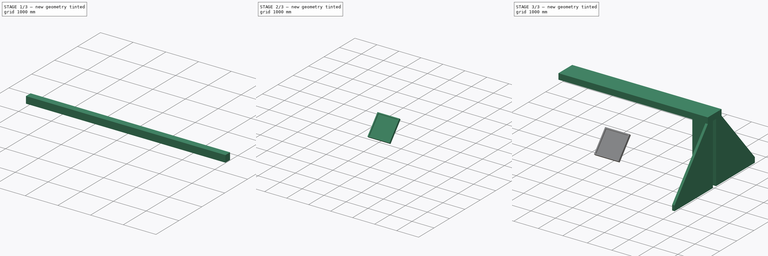
[diagram: build sequence overview — one tinted view per stage of 3, left to right]
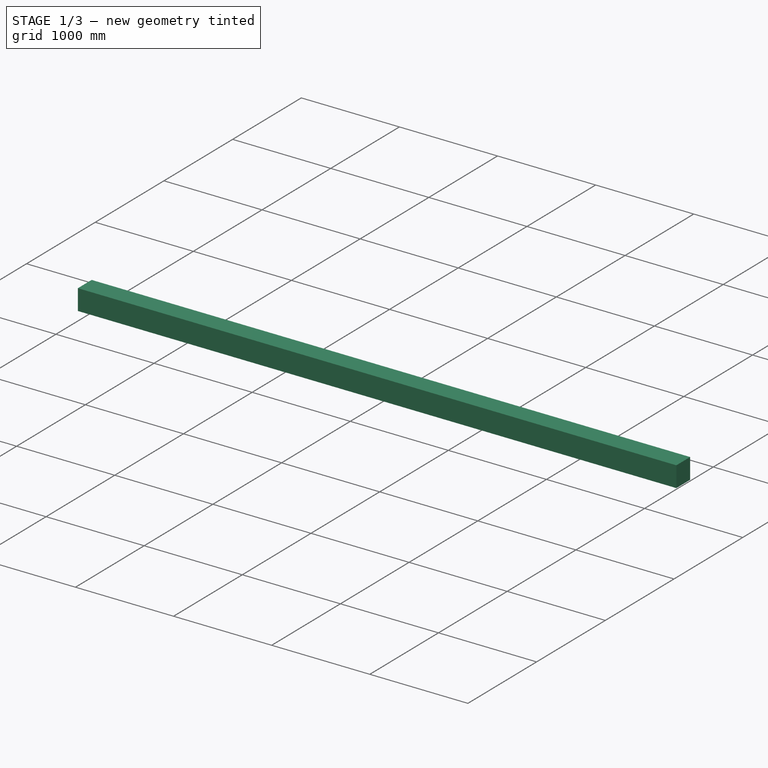
[diagram: stage 1 of 3 — iso view after this stage's code; geometry added in this stage tinted green]
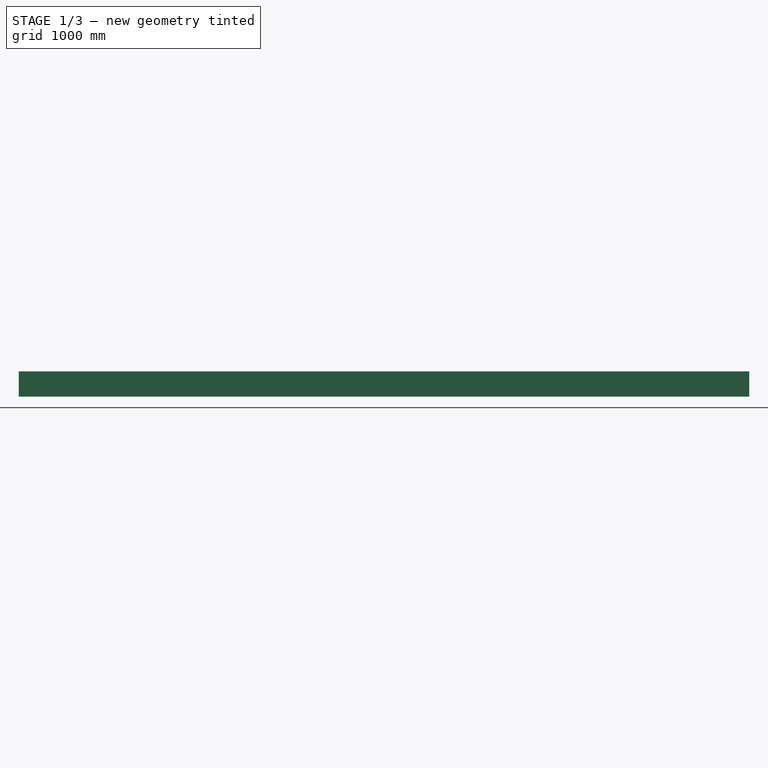
[diagram: stage 1 of 3 — front view after this stage's code; geometry added in this stage tinted green]
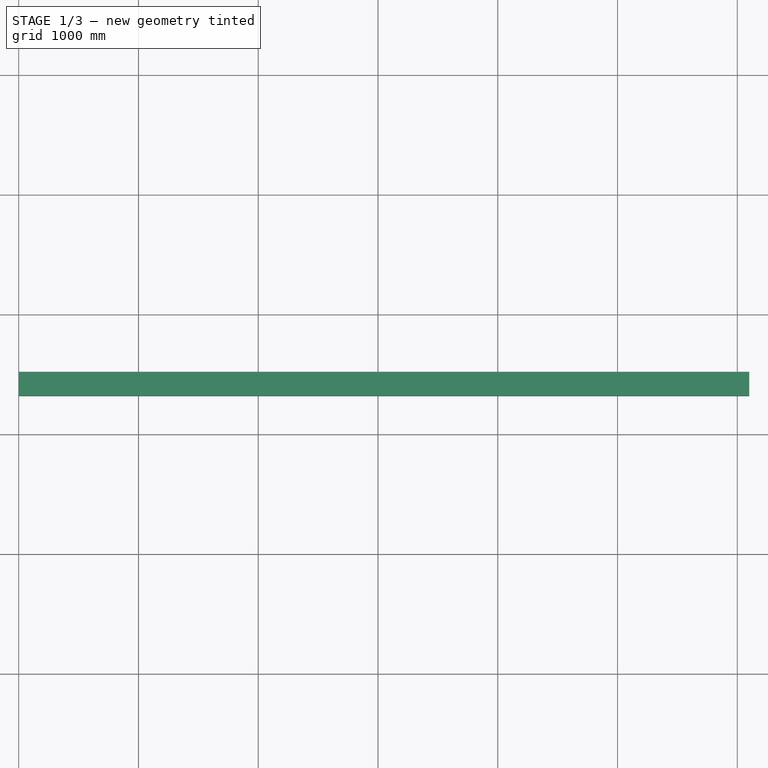
[diagram: stage 1 of 3 — top view after this stage's code; geometry added in this stage tinted green]
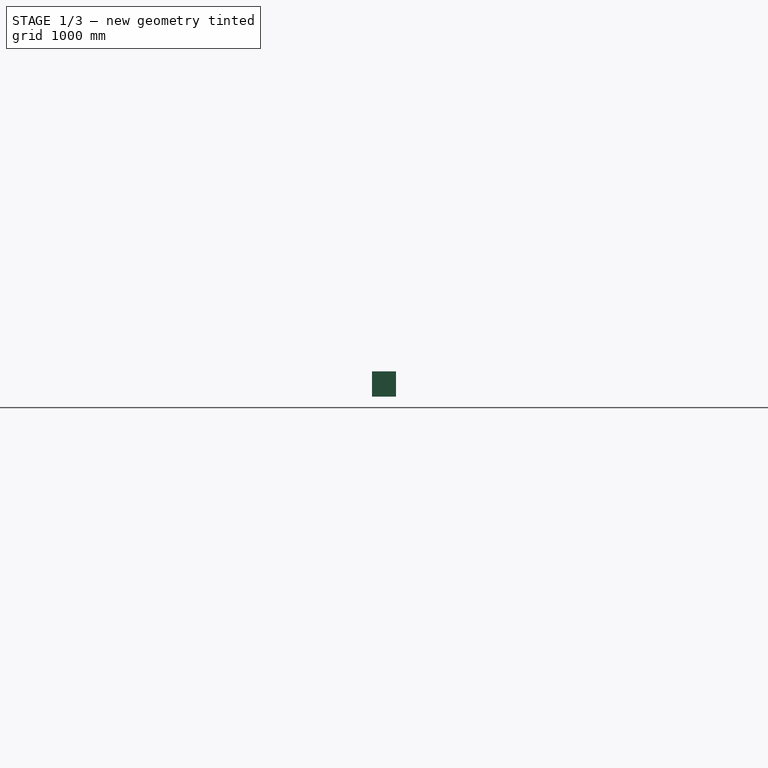
[diagram: stage 1 of 3 — right view after this stage's code; geometry added in this stage tinted green]
FCSTD DOCUMENT  (FreeCAD 1.0RUnknown)
Label: attic_bim
License: All rights reserved
LicenseURL: https://en.wikipedia.org/wiki/All_rights_reserved
objects: App::Link×8, Sketcher::SketchObject×7, Part::FeaturePython×7, App::DocumentObjectGroup×2, App::GeometryPython×2, Measure::MeasureDistance×1
note: 23 computed .brp shape members not serialized (recipe doc carries the construction recipe); baked Part::Feature solids carry a one-line shape summary decoded from their .brp
EXTERNAL_REF file=wardrobe_jan/wardrobe_jan_assy4.FCStd obj=Assembly
EXTERNAL_REF file=bed_dummy.FCStd obj=Body
EXTERNAL_REF file=entrance/leftWall.FCStd obj=Assembly
EXTERNAL_REF file=entrance/rightWallFront.FCStd obj=Assembly
EXTERNAL_REF file=entrance/rightWallSide.FCStd obj=Assembly
EXTERNAL_REF file=entrance/leftWall_top.FCStd obj=Assembly
EXTERNAL_REF file=entrance/rightWallFront_top.FCStd obj=Assembly
EXTERNAL_REF file=entrance/rightWallSide_top.FCStd obj=Assembly

FEATURE [Sketcher::SketchObject] Sketch
  ArcFitTolerance = 1e-06
  FullyConstrained = true
  MakeInternals = false
  Placement = pos=(0,0,0) rot=(0,0,-1;1.5708rad)
  expr: Constraints[2] = 140.5 cm
  sketch-geometry (14):
    g0: LineSegment StartX=-1405 StartY=0 StartZ=0 EndX=0 EndY=0 EndZ=0
    g1: LineSegment StartX=0 StartY=0 StartZ=0 EndX=0 EndY=887 EndZ=0
    g2: LineSegment StartX=0 StartY=887 StartZ=0 EndX=715 EndY=887 EndZ=0
    g3: LineSegment StartX=1815 StartY=807 StartZ=0 EndX=1815 EndY=0 EndZ=0
    g4: LineSegment StartX=1815 StartY=0 StartZ=0 EndX=3693 EndY=0 EndZ=0
    g5: LineSegment StartX=-1405 StartY=0 StartZ=0 EndX=-1405 EndY=6100 EndZ=0
    g6: LineSegment StartX=-1405 StartY=6100 StartZ=0 EndX=1055 EndY=6100 EndZ=0
    g7: LineSegment StartX=1055 StartY=6100 StartZ=0 EndX=1055 EndY=5430 EndZ=0
    g8: LineSegment StartX=1055 StartY=5430 StartZ=0 EndX=1240 EndY=5430 EndZ=0
    g9: LineSegment StartX=1240 StartY=5430 StartZ=0 EndX=1240 EndY=6100 EndZ=0
    g10: LineSegment StartX=1240 StartY=6100 StartZ=0 EndX=3693 EndY=6100 EndZ=0
    g11: LineSegment StartX=3693 StartY=6100 StartZ=0 EndX=3693 EndY=0 EndZ=0
    g12: LineSegment StartX=715 StartY=887 StartZ=0 EndX=715 EndY=807 EndZ=0
    g13: LineSegment StartX=715 StartY=807 StartZ=0 EndX=1815 EndY=807 EndZ=0
  constraints (41):
    c: PointOnObject(g0,g-1)
    c: Coincident(g0,g-1)
    c: DistanceX(g0,g0) = 1405
    c: Distance(g1) = 887
    c: Coincident(g1,g0)
    c: PointOnObject(g1,g-2)
    c: Coincident(g2,g1)
    c: Horizontal(g2)
    c: PointOnObject(g3,g-1)
    c: Vertical(g3)
    c: Coincident(g4,g3)
    c: PointOnObject(g4,g-1)
    c: Distance(g5) = 6100
    c: Coincident(g5,g0)
    c: Vertical(g5)
    c: Distance(g6) = 2460
    c: Coincident(g6,g5)
    c: Horizontal(g6)
    c: Distance(g7) = 670
    c: Coincident(g7,g6)
    c: Vertical(g7)
    c: Distance(g8) = 185
    c: Coincident(g8,g7)
    c: Horizontal(g8)
    c: Distance(g9) = 670
    c: Coincident(g9,g8)
    c: Vertical(g9)
    c: Coincident(g10,g9)
    c: Horizontal(g10)
    c: Coincident(g11,g10)
    c: Coincident(g11,g4)
    c: Perpendicular(g10,g11)
    c: Coincident(g12,g13)
    c: Vertical(g12)
    c: Horizontal(g13)
    c: Coincident(g3,g13)
    c: Distance(g12,g12) = 80
    c: DistanceX(g13,g13) = 1100
    c: DistanceX(g2,g2) = 715
    c: Coincident(g12,g2)
    c: DistanceX(g4,g4) = 1878
FEATURE [Part::FeaturePython] Structure  label="Platte"  # Arch/BIM 118 (typed FeaturePython)
  Base = -> Sketch
  BaseMirror = false
  BaseOffsetX = 0
  BaseOffsetY = 0
  BasePerpendicularToTool = false
  BaseRotation = 0
  ComputedLength = 200
  FaceMaker = 0
  Height = 200
  HorizontalArea = 29451945
  IfcData = attributes={"GlobalId": {"name": "GlobalId", "type": "IfcGloballyUniqueId", "is_enum": false, "enum_values": []}, "Description": {"... (+453 chars omitted),+1 more (map truncated)
  IfcType = 118
  Length = 0
  MoveBase = false
  MoveWithHost = false
  Nodes = (12) [(-3.10862e-13,1400,0),(0,0,0),(800,1.77636e-13,0),(800,-1400,0),(3.10862e-13,-1400,0),(8.03801e-13,-3620,0),(6000,-3620,0),(6000,-1260,0),+4 more]
  NodesOffset = 0
  Normal = (0,0,-1)
  PerimeterLength = 25510
  PredefinedType = 0
  ToolOffsetFirst = 0
  ToolOffsetLast = 0
  VerticalArea = 5102000
  Width = 100
FEATURE [Sketcher::SketchObject] WallTrace003
  ArcFitTolerance = 1e-06
  ExternalGeometry = -> [Structure]
  FullyConstrained = true
  MakeInternals = false
  sketch-geometry (1):
    g0: LineSegment StartX=807 StartY=-815 StartZ=0 EndX=807 EndY=-815 EndZ=0
  constraints (4):
    c: Horizontal(g0)
    c: Vertical(g0,g-3)
    c: Vertical(g0,g-3)
    c: Distance(g0,g-3) = 100
FEATURE [Part::FeaturePython] Wall002  label="Wand002"  # Arch/BIM 166 (typed FeaturePython)
  Align = 2
  ArchSketchData = true
  Area = 1281000
  Base = -> WallTrace003
  BlockHeight = 0
  BlockLength = 0
  CountBroken = 0
  CountEntire = 0
  Face = 0
  Height = 210
  HorizontalArea = 1220000
  IfcData = attributes={"GlobalId": {"name": "GlobalId", "type": "IfcGloballyUniqueId", "is_enum": false, "enum_values": []}, "Description": {"... (+533 chars omitted),+1 more (map truncated)
  IfcType = 166
  Joint = 0
  Length = 6100
  MakeBlocks = false
  MoveBase = false
  MoveWithHost = false
  Normal = (0,0,1)
  OffsetFirst = 0
  OffsetSecond = 0
  PerimeterLength = 12600
  PredefinedType = 0
  VerticalArea = 2646000
  Width = 200
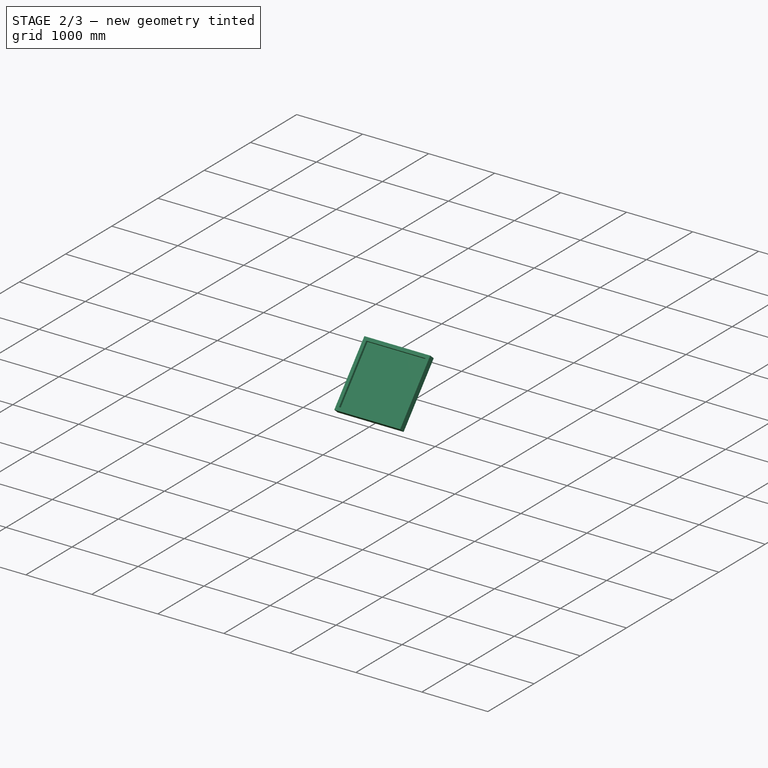
[diagram: stage 2 of 3 — iso view after this stage's code; geometry added in this stage tinted green]
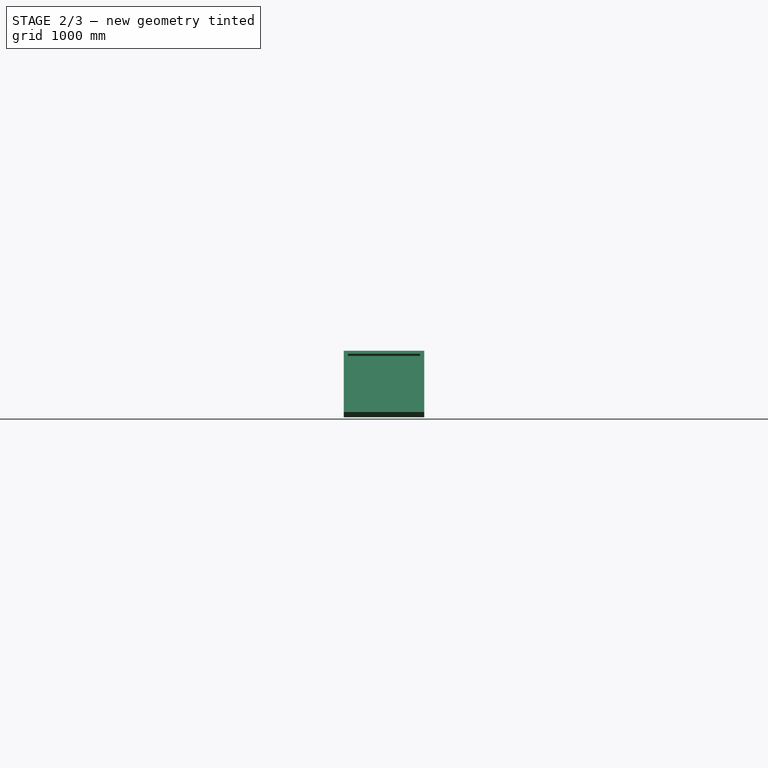
[diagram: stage 2 of 3 — front view after this stage's code; geometry added in this stage tinted green]
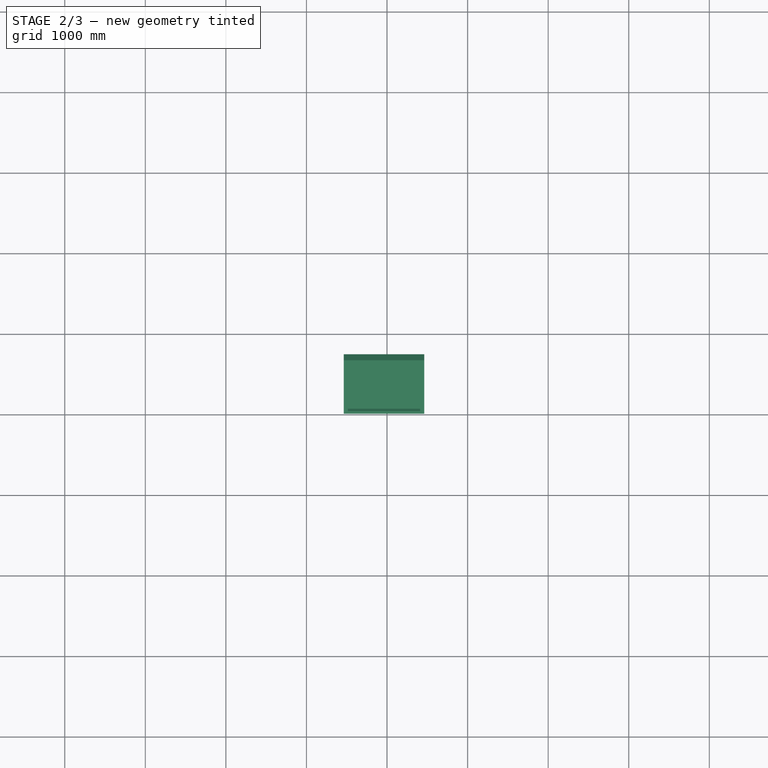
[diagram: stage 2 of 3 — top view after this stage's code; geometry added in this stage tinted green]
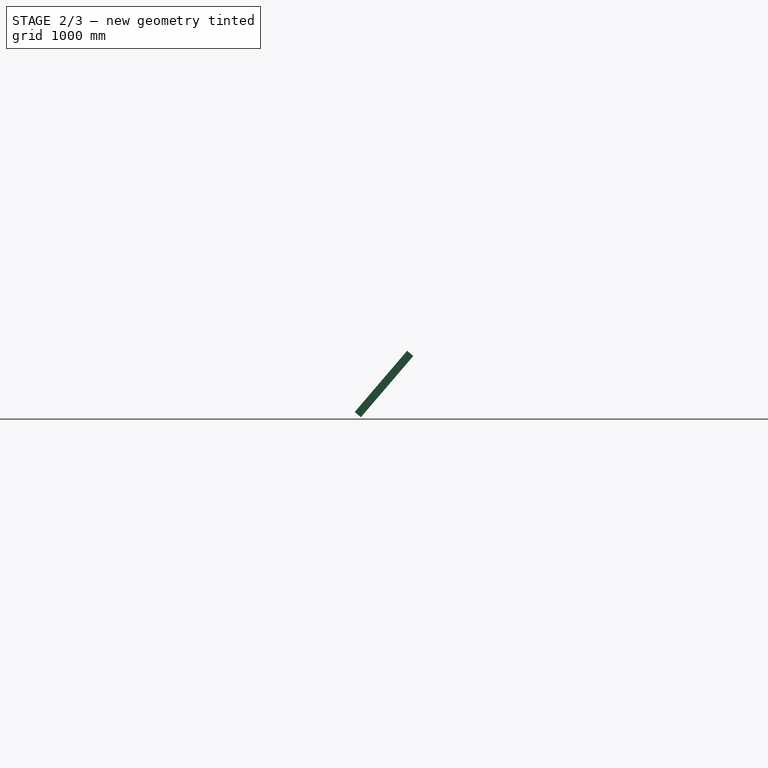
[diagram: stage 2 of 3 — right view after this stage's code; geometry added in this stage tinted green]
FEATURE [Sketcher::SketchObject] WallTrace001
  ArcFitTolerance = 1e-06
  ExternalGeometry = -> [Structure]
  FullyConstrained = true
  MakeInternals = false
  sketch-geometry (1):
    g0: LineSegment StartX=5430 StartY=-1155 StartZ=0 EndX=5430 EndY=-1155 EndZ=0
  constraints (4):
    c: Distance(g-3,g0) = 100
    c: Vertical(g-3,g0)
    c: Vertical(g-3,g0)
    c: Horizontal(g0)
FEATURE [Part::FeaturePython] Wall  label="Wand"  # Arch/BIM 166 (typed FeaturePython)
  Align = 2
  ArchSketchData = true
  Area = 1.281e+06
  Base = -> WallTrace001
  BlockHeight = 0
  BlockLength = 0
  CountBroken = 0
  CountEntire = 0
  Face = 0
  Height = 210
  HorizontalArea = 1.22e+06
  IfcData = attributes={"GlobalId": {"name": "GlobalId", "type": "IfcGloballyUniqueId", "is_enum": false, "enum_values": []}, "Description": {"... (+533 chars omitted),+1 more (map truncated)
  IfcType = 166
  Joint = 0
  Length = 6100
  MakeBlocks = false
  MoveBase = false
  MoveWithHost = false
  Normal = (0,0,1)
  OffsetFirst = 0
  OffsetSecond = 0
  PerimeterLength = 12600
  PredefinedType = 0
  VerticalArea = 2646000
  Width = 200
FEATURE [Sketcher::SketchObject] WallTrace002
  ArcFitTolerance = 1e-06
  ExternalGeometry = -> [Structure,Wall,Wall002]
  FullyConstrained = true
  MakeInternals = false
  sketch-geometry (5):
    g0: LineSegment StartX=6050 StartY=-1010 StartZ=0 EndX=5380 EndY=-1010 EndZ=0
    g1: LineSegment StartX=5380 StartY=-1010 StartZ=0 EndX=5380 EndY=-1295 EndZ=0
    g2: LineSegment StartX=5380 StartY=-1295 StartZ=0 EndX=6050 EndY=-1295 EndZ=0
    g3: LineSegment StartX=6050 StartY=-1010 StartZ=0 EndX=6050 EndY=1200 EndZ=0
    g4: LineSegment StartX=6050 StartY=-1295 StartZ=0 EndX=6050 EndY=-3480 EndZ=0
  constraints (16):
    c: Horizontal(g0)
    c: DistanceX(g0,g-3) = 50
    c: Coincident(g1,g0)
    c: Vertical(g1)
    c: Coincident(g2,g1)
    c: Horizontal(g2)
    c: Vertical(g3)
    c: PointOnObject(g3,g-5)
    c: DistanceX(g3,g-3) = 50
    c: Coincident(g0,g3)
    c: DistanceY(g-3,g0) = 50
    c: PointOnObject(g4,g-6)
    c: Vertical(g4)
    c: Coincident(g2,g4)
    c: DistanceX(g2,g-4) = 50
    c: DistanceY(g2,g-4) = 50
FEATURE [Sketcher::SketchObject] Sketch001
  ArcFitTolerance = 1e-06
  ExternalGeometry = -> [Wall,Wall002]
  FullyConstrained = true
  MakeInternals = false
  Placement = pos=(0,0,210) rot=(0,0,1;0rad)
  sketch-geometry (4):
    g0: LineSegment StartX=0 StartY=1200 StartZ=0 EndX=0 EndY=-3480 EndZ=0
    g1: LineSegment StartX=0 StartY=-3480 StartZ=0 EndX=6100 EndY=-3480 EndZ=0
    g2: LineSegment StartX=6100 StartY=-3480 StartZ=0 EndX=6100 EndY=1200 EndZ=0
    g3: LineSegment StartX=6100 StartY=1200 StartZ=0 EndX=0 EndY=1200 EndZ=0
  constraints (10):
    c: Coincident(g0,g1)
    c: Coincident(g1,g2)
    c: Coincident(g2,g3)
    c: Coincident(g3,g0)
    c: Vertical(g0)
    c: Vertical(g2)
    c: Horizontal(g1)
    c: Horizontal(g3)
    c: Coincident(g0,g-3)
    c: Coincident(g1,g-4)
FEATURE [Part::FeaturePython] Roof  label="Dach"  # Arch/BIM 113 (typed FeaturePython)
  Angles = [45,49.43,40,49.43]
  Base = -> Sketch001
  BorderLength = 41879.6
  Face = 0
  Flip = false
  Heights = [0,2265.84,0,2265.84]
  HorizontalArea = 2.55796e+07
  IdRel = [-1,-1,-1,-1]
  IfcData = attributes={"GlobalId": {"name": "GlobalId", "type": "IfcGloballyUniqueId", "is_enum": false, "enum_values": []}, "Description": {"... (+614 chars omitted),+1 more (map truncated)
  IfcType = 113
  MoveBase = false
  MoveWithHost = false
  Overhang = [0,200,100,200]
  PerimeterLength = 34140
  PredefinedType = 2
  RidgeLength = 998
  Runs = [0,1940,0,1940]
  Thickness = [50,160,50,160]
  VerticalArea = 8.42885e+06
FEATURE [App::Link] Link  label="wardrobe_jan"
  LinkPlacement = pos=(5661,130.999,-48) rot=(0,0,1;0rad)
  LinkedObject = -> <external wardrobe_jan/wardrobe_jan_assy4.FCStd>#Assembly
  Placement = pos=(5661,130.999,-48) rot=(0,0,1;0rad)
FEATURE [App::DocumentObjectGroup] Group  label="room"
  Group = -> [Structure,Wall001,Wall002,Wall,Roof,Structure001]
FEATURE [Sketcher::SketchObject] Sketch003
  ArcFitTolerance = 1e-06
  FullyConstrained = true
  MakeInternals = false
  Placement = pos=(2463.32,-2911.44,874.059) rot=(0.672392,0.672392,0.309479;3.74185rad)
  sketch-geometry (8):
    g0: LineSegment StartX=0 StartY=0 StartZ=0 EndX=1001 EndY=0 EndZ=0
    g1: LineSegment StartX=1001 StartY=0 StartZ=0 EndX=1001 EndY=998 EndZ=0
    g2: LineSegment StartX=1001 StartY=998 StartZ=0 EndX=0 EndY=998 EndZ=0
    g3: LineSegment StartX=0 StartY=998 StartZ=0 EndX=0 EndY=0 EndZ=0
    g4: LineSegment StartX=50 StartY=50 StartZ=0 EndX=951 EndY=50 EndZ=0
    g5: LineSegment StartX=951 StartY=50 StartZ=0 EndX=951 EndY=948 EndZ=0
    g6: LineSegment StartX=951 StartY=948 StartZ=0 EndX=50 EndY=948 EndZ=0
    g7: LineSegment StartX=50 StartY=948 StartZ=0 EndX=50 EndY=50 EndZ=0
  constraints (23):
    c: Coincident(g0,g1)
    c: Coincident(g1,g2)
    c: Coincident(g2,g3)
    c: Coincident(g3,g0)
    c: Horizontal(g0)
    c: Horizontal(g2)
    c: Vertical(g1)
    c: Vertical(g3)
    c: Coincident(g4,g5)
    c: Coincident(g5,g6)
    c: Coincident(g6,g7)
    c: Coincident(g7,g4)
    c: Horizontal(g4)
    c: Horizontal(g6)
    c: Vertical(g5)
    c: Vertical(g7)
    c: DistanceY(g1) = 998  'Height'
    c: DistanceX(g0) = 1001  'Width'
    c: DistanceY(g6,g2) = 50  'Frame1'
    c: DistanceX(g2,g6) = 50  'Frame2'
    c: DistanceX(g4,g0) = 50  'Frame3'
    c: DistanceY(g0,g4) = 50  'Frame4'
    c: Coincident(g0,g-1)
FEATURE [Part::FeaturePython] Window  label="Fenster"  # Arch/BIM 170 (typed FeaturePython)
  Area = 998998
  Base = -> Sketch003
  Frame = 50
  Height = 998
  HoleDepth = 0
  HoleWire = 0
  HorizontalArea = 0
  Hosts = -> [Roof]
  IfcData = attributes={"GlobalId": {"name": "GlobalId", "type": "IfcGloballyUniqueId", "is_enum": false, "enum_values": []}, "Description": {"... (+1230 chars omitted),+1 more (map truncated)
  IfcType = 170
  LouvreSpacing = 0
  LouvreWidth = 0
  MoveBase = false
  MoveWithHost = true
  Normal = (0,-0.759612,0.650377)
  Opening = 0
  OverallHeight = 998
  OverallWidth = 1001
  PartitioningType = 0
  PerimeterLength = 0
  PredefinedType = 0
  Preset = 1
  SymbolElevation = false
  SymbolPlan = false
  VerticalArea = 0
  Width = 1001
  WindowParts = OuterFrame | Frame | Wire0,Wire1 | 50.0+V | 0.00+V | Glass | Glass panel | Wire1 | 10.0 | 50.0+V
  expr: OverallHeight = .Height.Value
  expr: OverallWidth = .Width.Value
FEATURE [App::Link] Link001  label="bed_dummy"
  LinkPlacement = pos=(3244,-629,0) rot=(0,0,1;0rad)
  LinkedObject = -> <external bed_dummy.FCStd>#Body
  Placement = pos=(3244,-629,0) rot=(0,0,1;0rad)
FEATURE [App::GeometryPython] BuildingPart001  label="Stockwerk"  # Arch/BIM 14 (typed FeaturePython)
  Area = 0
  CompositionType = 0
  Elevation = 0
  Group = -> [Group,Link,Link001]
  Height = 0
  HeightPropagate = true
  IfcData = attributes={"GlobalId": {"name": "GlobalId", "type": "IfcGloballyUniqueId", "is_enum": false, "enum_values": []}, "Description": {"... (+849 chars omitted),+1 more (map truncated)
  IfcType = 14
  LevelOffset = 0
  LongName = Stockwerk
  MaterialsTable = Undefined=0,1,2,3,4,5,6,7,8,9,10,11,12,13,14,15,16,17,18,19,20,21,22,23,24,25,26,27,28,29,30,31,32,33,34,35,36,37
  OnlySolids = true
  expr: Elevation = .Placement.Base.z
FEATURE [App::GeometryPython] BuildingPart  label="Gebäude"  # Arch/BIM 10 (typed FeaturePython)
  Area = 0
  BuildingType = 0
  CompositionType = 0
  ElevationOfRefHeight = 0
  ElevationOfTerrain = 0
  Group = -> [BuildingPart001]
  Height = 0
  HeightPropagate = true
  IfcData = attributes={"GlobalId": {"name": "GlobalId", "type": "IfcGloballyUniqueId", "is_enum": false, "enum_values": []}, "Description": {"... (+993 chars omitted),+1 more (map truncated)
  IfcType = 10
  LevelOffset = 0
  LongName = Gebäude
  MaterialsTable = Undefined=0,1,2,3,4,5,6,7,8,9,10,11,12,13,14,15,16,17,18,19,20,21,22,23,24,25,26,27,28,29,30,31,32,33,34,35,36,37
  OnlySolids = true
FEATURE [App::Link] Link002  label="leftWall"
  LinkPlacement = pos=(446,58,30) rot=(0,0,1;1.5708rad)
  LinkedObject = -> <external entrance/leftWall.FCStd>#Assembly
  Placement = pos=(446,58,30) rot=(0,0,1;1.5708rad)
FEATURE [App::Link] Link003  label="rightWallFront"
  LinkPlacement = pos=(864,-1264,30) rot=(0,0,1;0rad)
  LinkedObject = -> <external entrance/rightWallFront.FCStd>#Assembly
  Placement = pos=(864,-1264,30) rot=(0,0,1;0rad)
FEATURE [App::Link] Link004  label="rightWallSide"
  LinkPlacement = pos=(456,-1864,28) rot=(0,0,1;1.5708rad)
  LinkedObject = -> <external entrance/rightWallSide.FCStd>#Assembly
  Placement = pos=(456,-1864,28) rot=(0,0,1;1.5708rad)
FEATURE [Measure::MeasureDistance] Distance  label="Distance: 1000,00 mm"
  Distance = 1000
  DistanceX = 2.50034
  DistanceY = 2.13e-14
  DistanceZ = 1000
  Element1 = -> Structure [Edge6]
  Element2 = -> Link002 [beam60x100x890.Body.Pad.Vertex4]
  Position1 = (-1.8e-15,7.99997,0)
  Position2 = (2.50034,7.99997,1000)
FEATURE [App::DocumentObjectGroup] Measurements
  Group = -> [Distance]
FEATURE [App::Link] Link005  label="leftWallTop"
  LinkPlacement = pos=(446,58,1032) rot=(0,0,1;1.5708rad)
  LinkedObject = -> <external entrance/leftWall_top.FCStd>#Assembly
  Placement = pos=(446,58,1032) rot=(0,0,1;1.5708rad)
FEATURE [App::Link] Link006  label="rightWallFrontTop"
  LinkPlacement = pos=(870,-1264,1030) rot=(0,0,1;0rad)
  LinkedObject = -> <external entrance/rightWallFront_top.FCStd>#Assembly
  Placement = pos=(870,-1264,1030) rot=(0,0,1;0rad)
FEATURE [App::Link] Link007  label="rightWallSideTop"
  LinkPlacement = pos=(456.001,-1864,1028) rot=(0,0,1;1.5708rad)
  LinkedObject = -> <external entrance/rightWallSide_top.FCStd>#Assembly
  Placement = pos=(456.001,-1864,1028) rot=(0,0,1;1.5708rad)

RESOLVED EXTERNAL PARTS (link-assembly join: the EXTERNAL_REF files above that resolve inside this repo's crawl, each included once):
---- part bed_dummy.FCStd = doc fcstd_31af814271d3 ----
FCSTD DOCUMENT  (FreeCAD 1.0RUnknown)
Label: bed_dummy
License: All rights reserved
objects: Sketcher::SketchObject×2, PartDesign::Pad×2, PartDesign::Body×1
note: 11 computed .brp shape members not serialized (recipe doc carries the construction recipe); baked Part::Feature solids carry a one-line shape summary decoded from their .brp

FEATURE [Sketcher::SketchObject] Sketch
  ArcFitTolerance = 1e-06
  AttachmentSupport = -> [XY_Plane]
  FullyConstrained = true
  MakeInternals = false
  MapMode = 5
  sketch-geometry (5):
    g0: LineSegment StartX=-935 StartY=1100 StartZ=0 EndX=-935 EndY=-1100 EndZ=0
    g1: LineSegment StartX=-935 StartY=-1100 StartZ=0 EndX=935 EndY=-1100 EndZ=0
    g2: LineSegment StartX=935 StartY=-1100 StartZ=0 EndX=935 EndY=1100 EndZ=0
    g3: LineSegment StartX=935 StartY=1100 StartZ=0 EndX=-935 EndY=1100 EndZ=0
    g4: GeomPoint [constr] X=0 Y=0 Z=0
  constraints (12):
    c: Coincident(g0,g1)
    c: Coincident(g1,g2)
    c: Coincident(g2,g3)
    c: Coincident(g3,g0)
    c: Vertical(g0)
    c: Vertical(g2)
    c: Horizontal(g1)
    c: Horizontal(g3)
    c: Symmetric(g2,g0,g4)
    c: Coincident(g4,g-1)
    c: DistanceX(g1,g1) = 1870
    c: DistanceY(g0,g0) = 2200
FEATURE [PartDesign::Pad] Pad
  Direction = (0,0,1)
  Length = 630
  Length2 = 10
  Profile = -> Sketch
  ReferenceAxis = -> Sketch [N_Axis]
  Refine = true
  Suppressed = false
  Type = 0
FEATURE [Sketcher::SketchObject] Sketch001
  ArcFitTolerance = 1e-06
  AttachmentSupport = -> [Pad]
  ExternalGeometry = -> [Pad]
  FullyConstrained = true
  MakeInternals = false
  MapMode = 5
  Placement = pos=(0,0,630) rot=(0,0,1;0rad)
  sketch-geometry (4):
    g0: LineSegment StartX=-935 StartY=1100 StartZ=0 EndX=-935 EndY=920 EndZ=0
    g1: LineSegment StartX=-935 StartY=920 StartZ=0 EndX=935 EndY=920 EndZ=0
    g2: LineSegment StartX=935 StartY=920 StartZ=0 EndX=935 EndY=1100 EndZ=0
    g3: LineSegment StartX=935 StartY=1100 StartZ=0 EndX=-935 EndY=1100 EndZ=0
  constraints (11):
    c: Coincident(g0,g1)
    c: Coincident(g1,g2)
    c: Coincident(g2,g3)
    c: Coincident(g3,g0)
    c: Vertical(g0)
    c: Vertical(g2)
    c: Horizontal(g1)
    c: Horizontal(g3)
    c: Coincident(g0,g-3)
    c: PointOnObject(g1,g-4)
    c: DistanceY(g2,g2) = 180
FEATURE [PartDesign::Pad] Pad001
  BaseFeature = -> Pad
  Direction = (0,0,1)
  Length = 410
  Length2 = 10
  Profile = -> Sketch001
  ReferenceAxis = -> Sketch001 [N_Axis]
  Refine = true
  Suppressed = false
  Type = 0
FEATURE [PartDesign::Body] Body  label="bed_dummy"
  AllowCompound = false
  Group = -> [Sketch,Pad,Sketch001,Pad001]
  Origin = -> Origin
  Tip = -> Pad001
---- part entrance/leftWall.FCStd = doc fcstd_db95720edff2 ----
FCSTD DOCUMENT  (FreeCAD 1.0RUnknown)
Label: leftWall
License: All rights reserved
LicenseURL: https://en.wikipedia.org/wiki/All_rights_reserved
objects: App::Link×4, App::DocumentObjectGroup×3, PartDesign::CoordinateSystem×1, App::FeaturePython×1, App::Part×1
note: 1 computed .brp shape members not serialized (recipe doc carries the construction recipe); baked Part::Feature solids carry a one-line shape summary decoded from their .brp
EXTERNAL_REF file=beam60x100.FCStd obj=LCS_Origin
EXTERNAL_REF file=beam60x100.FCStd obj=beam60x100x887
EXTERNAL_REF file=beam60x100.FCStd obj=LCS_1
EXTERNAL_REF file=beam60x100x1000.FCStd obj=LCS_1
EXTERNAL_REF file=beam60x100x1000.FCStd obj=beam60x100x887
EXTERNAL_REF file=beam60x100.FCStd obj=LCS_2
EXTERNAL_REF file=beam60x100x1000.FCStd obj=LCS_2

FEATURE [App::DocumentObjectGroup] Parts
FEATURE [PartDesign::CoordinateSystem] LCS_Origin
  AttacherType = Attacher::AttachEngine3D
  AttachmentSupport = -> [X_Axis]
  MapMode = 2
FEATURE [App::DocumentObjectGroup] Constraints
FEATURE [App::FeaturePython] Variables  # WARN: FeaturePython — macro-defined, semantics opaque (R4)
  Type = App::PropertyContainer
FEATURE [App::DocumentObjectGroup] Configurations
FEATURE [App::Link] beam60x100x887
  AttachedBy = #LCS_Origin
  AttachedTo = Parent Assembly#LCS_Origin
  AttachmentOffset = pos=(0,0,0) rot=(0.707107,0,-0.707107;3.14159rad)
  LinkPlacement = pos=(0,0,0) rot=(0.707107,0,-0.707107;3.14159rad)
  LinkedObject = -> <external beam60x100.FCStd>#beam60x100x887
  Placement = pos=(0,0,0) rot=(0.707107,0,-0.707107;3.14159rad)
  SolverId = Asm4EE
  expr: Placement = LCS_Origin.Placement * AttachmentOffset * Unnamed#LCS_Origin.Placement ^ -1
FEATURE [App::Link] beam60x100x888
  AttachedBy = #LCS_1
  AttachedTo = beam60x100x887#LCS_1
  AttachmentOffset = pos=(0,0,0) rot=(0,0,1;4.71239rad)
  LinkPlacement = pos=(-1.574e-13,-413.5,470) rot=(-0.57735,-0.57735,0.57735;2.0944rad)
  LinkedObject = -> <external beam60x100x1000.FCStd>#beam60x100x887
  Placement = pos=(-1.574e-13,-413.5,470) rot=(-0.57735,-0.57735,0.57735;2.0944rad)
  SolverId = Asm4EE
  expr: Placement = beam60x100x887.Placement * Unnamed#LCS_1.Placement * AttachmentOffset * beam60x100x1000#LCS_1.Placement ^ -1
FEATURE [App::Link] beam60x100x889
  AttachedBy = #LCS_2
  AttachedTo = beam60x100x887#LCS_2
  AttachmentOffset = pos=(0,0,0) rot=(0,0,-1;4.71239rad)
  LinkPlacement = pos=(-1.507e-13,413.5,470) rot=(-0.57735,0.57735,0.57735;4.18879rad)
  LinkedObject = -> <external beam60x100x1000.FCStd>#beam60x100x887
  Placement = pos=(-1.507e-13,413.5,470) rot=(-0.57735,0.57735,0.57735;4.18879rad)
  SolverId = Asm4EE
  expr: Placement = beam60x100x887.Placement * Unnamed#LCS_2.Placement * AttachmentOffset * beam60x100x1000#LCS_2.Placement ^ -1
FEATURE [App::Link] beam60x100x890
  AttachedBy = #LCS_1
  AttachedTo = beam60x100x888#LCS_2
  AttachmentOffset = pos=(0,0,0) rot=(0.707107,-0.707107,0;3.14159rad)
  LinkPlacement = pos=(-4.296e-13,-3.411e-13,940) rot=(0.707107,0,0.707107;3.14159rad)
  LinkedObject = -> <external beam60x100.FCStd>#beam60x100x887
  Placement = pos=(-4.296e-13,-3.411e-13,940) rot=(0.707107,0,0.707107;3.14159rad)
  SolverId = Asm4EE
  expr: Placement = beam60x100x888.Placement * beam60x100x1000#LCS_2.Placement * AttachmentOffset * Unnamed#LCS_1.Placement ^ -1
FEATURE [App::Part] Assembly  label="leftWall"
  AssemblyType = Part::Link
  Group = -> [LCS_Origin,Constraints,Variables,Configurations,beam60x100x887,beam60x100x888,beam60x100x889,beam60x100x890]
  Origin = -> Origin
  Type = Assembly
---- part entrance/leftWall_top.FCStd = doc fcstd_cc8b69689ba3 ----
FCSTD DOCUMENT  (FreeCAD 1.0RUnknown)
Label: leftWall_top
License: All rights reserved
LicenseURL: https://en.wikipedia.org/wiki/All_rights_reserved
objects: App::Link×4, App::DocumentObjectGroup×3, PartDesign::CoordinateSystem×1, App::FeaturePython×1, App::Part×1
note: 1 computed .brp shape members not serialized (recipe doc carries the construction recipe); baked Part::Feature solids carry a one-line shape summary decoded from their .brp
EXTERNAL_REF file=beam60x100.FCStd obj=LCS_Origin
EXTERNAL_REF file=beam60x100.FCStd obj=beam60x100x887
EXTERNAL_REF file=beam60x100.FCStd obj=LCS_1
EXTERNAL_REF file=beam60x100x400.FCStd obj=LCS_1
EXTERNAL_REF file=beam60x100x400.FCStd obj=beam60x100x887
EXTERNAL_REF file=beam60x100.FCStd obj=LCS_2
EXTERNAL_REF file=beam60x100x400.FCStd obj=LCS_2

FEATURE [App::DocumentObjectGroup] Parts
FEATURE [PartDesign::CoordinateSystem] LCS_Origin
  AttacherType = Attacher::AttachEngine3D
  AttachmentSupport = -> [X_Axis]
  MapMode = 2
FEATURE [App::DocumentObjectGroup] Constraints
FEATURE [App::FeaturePython] Variables  # WARN: FeaturePython — macro-defined, semantics opaque (R4)
  Type = App::PropertyContainer
FEATURE [App::DocumentObjectGroup] Configurations
FEATURE [App::Link] beam60x100x887
  AttachedBy = #LCS_Origin
  AttachedTo = Parent Assembly#LCS_Origin
  AttachmentOffset = pos=(0,0,0) rot=(0.707107,0,-0.707107;3.14159rad)
  LinkPlacement = pos=(0,0,0) rot=(0.707107,0,-0.707107;3.14159rad)
  LinkedObject = -> <external beam60x100.FCStd>#beam60x100x887
  Placement = pos=(0,0,0) rot=(0.707107,0,-0.707107;3.14159rad)
  SolverId = Asm4EE
  expr: Placement = LCS_Origin.Placement * AttachmentOffset * beam60x100#LCS_Origin.Placement ^ -1
FEATURE [App::Link] beam60x100x888  label="beam60x100x400"
  AttachedBy = #LCS_1
  AttachedTo = beam60x100x887#LCS_1
  AttachmentOffset = pos=(0,0,0) rot=(0,0,1;4.71239rad)
  LinkPlacement = pos=(5.42e-14,-413.5,305) rot=(-0.57735,-0.57735,0.57735;2.0944rad)
  LinkedObject = -> <external beam60x100x400.FCStd>#beam60x100x887
  Placement = pos=(5.42e-14,-413.5,305) rot=(-0.57735,-0.57735,0.57735;2.0944rad)
  SolverId = Asm4EE
  expr: Placement = beam60x100x887.Placement * beam60x100#LCS_1.Placement * AttachmentOffset * beam60x100x400#LCS_1.Placement ^ -1
FEATURE [App::Link] beam60x100x889  label="beam60x100x400_1"
  AttachedBy = #LCS_2
  AttachedTo = beam60x100x887#LCS_2
  AttachmentOffset = pos=(0,0,0) rot=(0,0,-1;4.71239rad)
  LinkPlacement = pos=(-2.829e-13,413.5,305) rot=(-0.57735,0.57735,0.57735;4.18879rad)
  LinkedObject = -> <external beam60x100x400.FCStd>#beam60x100x887
  Placement = pos=(-2.829e-13,413.5,305) rot=(-0.57735,0.57735,0.57735;4.18879rad)
  SolverId = Asm4EE
  expr: Placement = beam60x100x887.Placement * beam60x100#LCS_2.Placement * AttachmentOffset * beam60x100x400#LCS_2.Placement ^ -1
FEATURE [App::Link] beam60x100x890
  AttachedBy = #LCS_1
  AttachedTo = beam60x100x888#LCS_2
  AttachmentOffset = pos=(0,0,0) rot=(0.707107,-0.707107,0;3.14159rad)
  LinkPlacement = pos=(4.51e-14,0,610) rot=(0.707107,0,0.707107;3.14159rad)
  LinkedObject = -> <external beam60x100.FCStd>#beam60x100x887
  Placement = pos=(4.51e-14,0,610) rot=(0.707107,0,0.707107;3.14159rad)
  SolverId = Asm4EE
  expr: Placement = beam60x100x888.Placement * beam60x100x400#LCS_2.Placement * AttachmentOffset * beam60x100#LCS_1.Placement ^ -1
FEATURE [App::Part] Assembly  label="leftWall"
  AssemblyType = Part::Link
  Group = -> [LCS_Origin,Constraints,Variables,Configurations,beam60x100x887,beam60x100x888,beam60x100x889,beam60x100x890]
  Origin = -> Origin
  Type = Assembly
---- part entrance/rightWallFront.FCStd = doc fcstd_54a1832e966c ----
FCSTD DOCUMENT  (FreeCAD 1.0RUnknown)
Label: rightWallFront
License: All rights reserved
LicenseURL: https://en.wikipedia.org/wiki/All_rights_reserved
objects: App::Link×4, App::DocumentObjectGroup×3, PartDesign::CoordinateSystem×1, App::FeaturePython×1, App::Part×1
note: 1 computed .brp shape members not serialized (recipe doc carries the construction recipe); baked Part::Feature solids carry a one-line shape summary decoded from their .brp
EXTERNAL_REF file=beam60x100x1100.FCStd obj=LCS_Origin
EXTERNAL_REF file=beam60x100x1100.FCStd obj=beam60x100x887
EXTERNAL_REF file=beam60x100x1000.FCStd obj=LCS_1
EXTERNAL_REF file=beam60x100x1100.FCStd obj=LCS_1
EXTERNAL_REF file=beam60x100x1000.FCStd obj=beam60x100x887
EXTERNAL_REF file=beam60x100x1000.FCStd obj=LCS_2
EXTERNAL_REF file=beam60x100x1100.FCStd obj=LCS_2

FEATURE [App::DocumentObjectGroup] Parts
FEATURE [PartDesign::CoordinateSystem] LCS_Origin
  AttacherType = Attacher::AttachEngine3D
  AttachmentSupport = -> [X_Axis]
  MapMode = 2
FEATURE [App::DocumentObjectGroup] Constraints
FEATURE [App::FeaturePython] Variables  # WARN: FeaturePython — macro-defined, semantics opaque (R4)
  Type = App::PropertyContainer
FEATURE [App::DocumentObjectGroup] Configurations
FEATURE [App::Link] beam60x100x1100
  AttachedBy = #LCS_Origin
  AttachedTo = Parent Assembly#LCS_Origin
  AttachmentOffset = pos=(0,0,0) rot=(0,1,0;1.5708rad)
  LinkPlacement = pos=(0,0,0) rot=(0,1,0;1.5708rad)
  LinkedObject = -> <external beam60x100x1100.FCStd>#beam60x100x887
  Placement = pos=(0,0,0) rot=(0,1,0;1.5708rad)
  SolverId = Asm4EE
  expr: Placement = LCS_Origin.Placement * AttachmentOffset * beam60x100x1100#LCS_Origin.Placement ^ -1
FEATURE [App::Link] beam60x100x800
  AttachedBy = #LCS_1
  AttachedTo = beam60x100x1100#LCS_1
  AttachmentOffset = pos=(0,0,0) rot=(0,0,1;4.71239rad)
  LinkPlacement = pos=(-1.288e-13,520,470) rot=(0.57735,-0.57735,0.57735;4.18879rad)
  LinkedObject = -> <external beam60x100x1000.FCStd>#beam60x100x887
  Placement = pos=(-1.288e-13,520,470) rot=(0.57735,-0.57735,0.57735;4.18879rad)
  SolverId = Asm4EE
  expr: Placement = beam60x100x1100.Placement * beam60x100x1100#LCS_1.Placement * AttachmentOffset * beam60x100x1000#LCS_1.Placement ^ -1
FEATURE [App::Link] beam60x100x1101
  AttachedBy = #LCS_2
  AttachedTo = beam60x100x1100#LCS_2
  AttachmentOffset = pos=(0,0,0) rot=(0,0,1;1.5708rad)
  LinkPlacement = pos=(-7.99e-14,-520,470) rot=(0.57735,0.57735,0.57735;2.0944rad)
  LinkedObject = -> <external beam60x100x1000.FCStd>#beam60x100x887
  Placement = pos=(-7.99e-14,-520,470) rot=(0.57735,0.57735,0.57735;2.0944rad)
  SolverId = Asm4EE
  expr: Placement = beam60x100x1100.Placement * beam60x100x1100#LCS_2.Placement * AttachmentOffset * beam60x100x1000#LCS_2.Placement ^ -1
FEATURE [App::Link] beam60x100x1102
  AttachedBy = #LCS_1
  AttachedTo = beam60x100x800#LCS_2
  AttachmentOffset = pos=(0,0,0) rot=(0.707107,-0.707107,0;3.14159rad)
  LinkPlacement = pos=(-2.744e-13,2.274e-13,940) rot=(0,1,0;4.71239rad)
  LinkedObject = -> <external beam60x100x1100.FCStd>#beam60x100x887
  Placement = pos=(-2.744e-13,2.274e-13,940) rot=(0,1,0;4.71239rad)
  SolverId = Asm4EE
  expr: Placement = beam60x100x800.Placement * beam60x100x1000#LCS_2.Placement * AttachmentOffset * beam60x100x1100#LCS_1.Placement ^ -1
FEATURE [App::Part] Assembly  label="rightWallFront"
  AssemblyType = Part::Link
  Group = -> [LCS_Origin,Constraints,Variables,Configurations,beam60x100x1100,beam60x100x800,beam60x100x1101,beam60x100x1102]
  Origin = -> Origin
  Type = Assembly
---- part entrance/rightWallFront_top.FCStd = doc fcstd_c292ae6388ad ----
FCSTD DOCUMENT  (FreeCAD 1.0RUnknown)
Label: rightWallFront_top
License: All rights reserved
LicenseURL: https://en.wikipedia.org/wiki/All_rights_reserved
objects: App::Link×4, App::DocumentObjectGroup×3, PartDesign::CoordinateSystem×1, App::FeaturePython×1, App::Part×1
note: 1 computed .brp shape members not serialized (recipe doc carries the construction recipe); baked Part::Feature solids carry a one-line shape summary decoded from their .brp
EXTERNAL_REF file=beam60x100x1100.FCStd obj=LCS_Origin
EXTERNAL_REF file=beam60x100x1100.FCStd obj=beam60x100x887
EXTERNAL_REF file=beam60x100x1100.FCStd obj=LCS_1
EXTERNAL_REF file=beam60x100x1500.FCStd obj=LCS_1
EXTERNAL_REF file=beam60x100x1500.FCStd obj=beam60x100x887
EXTERNAL_REF file=beam60x100x1100.FCStd obj=LCS_2
EXTERNAL_REF file=beam60x100x1500.FCStd obj=LCS_2

FEATURE [App::DocumentObjectGroup] Parts
FEATURE [PartDesign::CoordinateSystem] LCS_Origin
  AttacherType = Attacher::AttachEngine3D
  AttachmentSupport = -> [X_Axis]
  MapMode = 2
FEATURE [App::DocumentObjectGroup] Constraints
FEATURE [App::FeaturePython] Variables  # WARN: FeaturePython — macro-defined, semantics opaque (R4)
  Type = App::PropertyContainer
FEATURE [App::DocumentObjectGroup] Configurations
FEATURE [App::Link] beam60x100x1100
  AttachedBy = #LCS_Origin
  AttachedTo = Parent Assembly#LCS_Origin
  AttachmentOffset = pos=(0,0,0) rot=(0,1,0;1.5708rad)
  LinkPlacement = pos=(0,0,0) rot=(0,1,0;1.5708rad)
  LinkedObject = -> <external beam60x100x1100.FCStd>#beam60x100x887
  Placement = pos=(0,0,0) rot=(0,1,0;1.5708rad)
  SolverId = Asm4EE
  expr: Placement = LCS_Origin.Placement * AttachmentOffset * beam60x100x1100#LCS_Origin.Placement ^ -1
FEATURE [App::Link] beam60x100x800  label="beam60x100x1500_1"
  AttachedBy = #LCS_1
  AttachedTo = beam60x100x1100#LCS_1
  AttachmentOffset = pos=(0,0,0) rot=(0,0,1;4.71239rad)
  LinkPlacement = pos=(-2.507e-13,520,710) rot=(0.57735,-0.57735,0.57735;4.18879rad)
  LinkedObject = -> <external beam60x100x1500.FCStd>#beam60x100x887
  Placement = pos=(-2.507e-13,520,710) rot=(0.57735,-0.57735,0.57735;4.18879rad)
  SolverId = Asm4EE
  expr: Placement = beam60x100x1100.Placement * beam60x100x1100#LCS_1.Placement * AttachmentOffset * beam60x100x1500#LCS_1.Placement ^ -1
FEATURE [App::Link] beam60x100x1101  label="beam60x100x1500"
  AttachedBy = #LCS_2
  AttachedTo = beam60x100x1100#LCS_2
  AttachmentOffset = pos=(0,0,0) rot=(0,0,1;1.5708rad)
  LinkPlacement = pos=(-6.46e-14,-520,710) rot=(0.57735,0.57735,0.57735;2.0944rad)
  LinkedObject = -> <external beam60x100x1500.FCStd>#beam60x100x887
  Placement = pos=(-6.46e-14,-520,710) rot=(0.57735,0.57735,0.57735;2.0944rad)
  SolverId = Asm4EE
  expr: Placement = beam60x100x1100.Placement * beam60x100x1100#LCS_2.Placement * AttachmentOffset * beam60x100x1500#LCS_2.Placement ^ -1
FEATURE [App::Link] beam60x100x1102
  AttachedBy = #LCS_1
  AttachedTo = beam60x100x800#LCS_2
  AttachmentOffset = pos=(0,0,0) rot=(0.707107,-0.707107,0;3.14159rad)
  LinkPlacement = pos=(-5.617e-13,1.137e-13,1420) rot=(0,1,0;4.71239rad)
  LinkedObject = -> <external beam60x100x1100.FCStd>#beam60x100x887
  Placement = pos=(-5.617e-13,1.137e-13,1420) rot=(0,1,0;4.71239rad)
  SolverId = Asm4EE
  expr: Placement = beam60x100x800.Placement * beam60x100x1500#LCS_2.Placement * AttachmentOffset * beam60x100x1100#LCS_1.Placement ^ -1
FEATURE [App::Part] Assembly  label="rightWallFront"
  AssemblyType = Part::Link
  Group = -> [LCS_Origin,Constraints,Variables,Configurations,beam60x100x1100,beam60x100x800,beam60x100x1101,beam60x100x1102]
  Origin = -> Origin
  Type = Assembly
---- part entrance/rightWallSide.FCStd = doc fcstd_13c199a2c381 ----
FCSTD DOCUMENT  (FreeCAD 1.0RUnknown)
Label: rightWallSide
License: All rights reserved
LicenseURL: https://en.wikipedia.org/wiki/All_rights_reserved
objects: App::Link×4, App::DocumentObjectGroup×3, PartDesign::CoordinateSystem×1, App::FeaturePython×1, App::Part×1
note: 1 computed .brp shape members not serialized (recipe doc carries the construction recipe); baked Part::Feature solids carry a one-line shape summary decoded from their .brp
EXTERNAL_REF file=beam60x100x919.FCStd obj=LCS_Origin
EXTERNAL_REF file=beam60x100x919.FCStd obj=beam60x100x887
EXTERNAL_REF file=beam60x100x1000.FCStd obj=LCS_1
EXTERNAL_REF file=beam60x100x919.FCStd obj=LCS_1
EXTERNAL_REF file=beam60x100x1000.FCStd obj=beam60x100x887
EXTERNAL_REF file=beam60x100x1000.FCStd obj=LCS_2
EXTERNAL_REF file=beam60x100x919.FCStd obj=LCS_2

FEATURE [App::DocumentObjectGroup] Parts
FEATURE [PartDesign::CoordinateSystem] LCS_Origin
  AttacherType = Attacher::AttachEngine3D
  AttachmentSupport = -> [X_Axis]
  MapMode = 2
FEATURE [App::DocumentObjectGroup] Constraints
FEATURE [App::FeaturePython] Variables  # WARN: FeaturePython — macro-defined, semantics opaque (R4)
  Type = App::PropertyContainer
FEATURE [App::DocumentObjectGroup] Configurations
FEATURE [App::Link] beam60x100x1100
  AttachedBy = #LCS_Origin
  AttachedTo = Parent Assembly#LCS_Origin
  AttachmentOffset = pos=(0,0,0) rot=(0,1,0;1.5708rad)
  LinkPlacement = pos=(0,0,0) rot=(0,1,0;1.5708rad)
  LinkedObject = -> <external beam60x100x919.FCStd>#beam60x100x887
  Placement = pos=(0,0,0) rot=(0,1,0;1.5708rad)
  SolverId = Asm4EE
  expr: Placement = LCS_Origin.Placement * AttachmentOffset * beam60x100x919#LCS_Origin.Placement ^ -1
FEATURE [App::Link] beam60x100x800
  AttachedBy = #LCS_1
  AttachedTo = beam60x100x1100#LCS_1
  AttachmentOffset = pos=(0,0,0) rot=(0,0,1;4.71239rad)
  LinkPlacement = pos=(-1.087e-13,429.5,470) rot=(0.57735,-0.57735,0.57735;4.18879rad)
  LinkedObject = -> <external beam60x100x1000.FCStd>#beam60x100x887
  Placement = pos=(-1.087e-13,429.5,470) rot=(0.57735,-0.57735,0.57735;4.18879rad)
  SolverId = Asm4EE
  expr: Placement = beam60x100x1100.Placement * beam60x100x919#LCS_1.Placement * AttachmentOffset * beam60x100x1000#LCS_1.Placement ^ -1
FEATURE [App::Link] beam60x100x1101
  AttachedBy = #LCS_2
  AttachedTo = beam60x100x1100#LCS_2
  AttachmentOffset = pos=(0,0,0) rot=(0,0,1;1.5708rad)
  LinkPlacement = pos=(-1e-13,-429.5,470) rot=(0.57735,0.57735,0.57735;2.0944rad)
  LinkedObject = -> <external beam60x100x1000.FCStd>#beam60x100x887
  Placement = pos=(-1e-13,-429.5,470) rot=(0.57735,0.57735,0.57735;2.0944rad)
  SolverId = Asm4EE
  expr: Placement = beam60x100x1100.Placement * beam60x100x919#LCS_2.Placement * AttachmentOffset * beam60x100x1000#LCS_2.Placement ^ -1
FEATURE [App::Link] beam60x100x1102
  AttachedBy = #LCS_2
  AttachedTo = beam60x100x800#LCS_2
  AttachmentOffset = pos=(0,0,0) rot=(0,0,1;4.71239rad)
  LinkPlacement = pos=(-2.174e-13,2.274e-13,940) rot=(-0.707107,0,-0.707107;3.14159rad)
  LinkedObject = -> <external beam60x100x919.FCStd>#beam60x100x887
  Placement = pos=(-2.174e-13,2.274e-13,940) rot=(-0.707107,0,-0.707107;3.14159rad)
  SolverId = Asm4EE
  expr: Placement = beam60x100x800.Placement * beam60x100x1000#LCS_2.Placement * AttachmentOffset * beam60x100x919#LCS_2.Placement ^ -1
FEATURE [App::Part] Assembly  label="rightWallSide"
  AssemblyType = Part::Link
  Group = -> [LCS_Origin,Constraints,Variables,Configurations,beam60x100x1100,beam60x100x800,beam60x100x1101,beam60x100x1102]
  Origin = -> Origin
  Type = Assembly
---- part entrance/rightWallSide_top.FCStd = doc fcstd_380e505d4690 ----
FCSTD DOCUMENT  (FreeCAD 1.0RUnknown)
Label: rightWallSide_top
License: All rights reserved
LicenseURL: https://en.wikipedia.org/wiki/All_rights_reserved
objects: App::Link×4, App::DocumentObjectGroup×3, PartDesign::CoordinateSystem×1, App::FeaturePython×1, App::Part×1
note: 1 computed .brp shape members not serialized (recipe doc carries the construction recipe); baked Part::Feature solids carry a one-line shape summary decoded from their .brp
EXTERNAL_REF file=beam60x100x919.FCStd obj=LCS_Origin
EXTERNAL_REF file=beam60x100x919.FCStd obj=beam60x100x887
EXTERNAL_REF file=beam60x100x919.FCStd obj=LCS_1
EXTERNAL_REF file=beam60x100x980.FCStd obj=LCS_1
EXTERNAL_REF file=beam60x100x980.FCStd obj=beam60x100x887
EXTERNAL_REF file=beam60x100x919.FCStd obj=LCS_2
EXTERNAL_REF file=beam60x100x980.FCStd obj=LCS_2

FEATURE [App::DocumentObjectGroup] Parts
FEATURE [PartDesign::CoordinateSystem] LCS_Origin
  AttacherType = Attacher::AttachEngine3D
  AttachmentSupport = -> [X_Axis]
  MapMode = 2
FEATURE [App::DocumentObjectGroup] Constraints
FEATURE [App::FeaturePython] Variables  # WARN: FeaturePython — macro-defined, semantics opaque (R4)
  Type = App::PropertyContainer
FEATURE [App::DocumentObjectGroup] Configurations
FEATURE [App::Link] beam60x100x1100
  AttachedBy = #LCS_Origin
  AttachedTo = Parent Assembly#LCS_Origin
  AttachmentOffset = pos=(0,0,0) rot=(0,1,0;1.5708rad)
  LinkPlacement = pos=(0,0,0) rot=(0,1,0;1.5708rad)
  LinkedObject = -> <external beam60x100x919.FCStd>#beam60x100x887
  Placement = pos=(0,0,0) rot=(0,1,0;1.5708rad)
  SolverId = Asm4EE
  expr: Placement = LCS_Origin.Placement * AttachmentOffset * beam60x100x919#LCS_Origin.Placement ^ -1
FEATURE [App::Link] beam60x100x800
  AttachedBy = #LCS_1
  AttachedTo = beam60x100x1100#LCS_1
  AttachmentOffset = pos=(0,0,0) rot=(0,0,1;4.71239rad)
  LinkPlacement = pos=(-2.107e-13,429.5,580) rot=(0.57735,-0.57735,0.57735;4.18879rad)
  LinkedObject = -> <external beam60x100x980.FCStd>#beam60x100x887
  Placement = pos=(-2.107e-13,429.5,580) rot=(0.57735,-0.57735,0.57735;4.18879rad)
  SolverId = Asm4EE
  expr: Placement = beam60x100x1100.Placement * beam60x100x919#LCS_1.Placement * AttachmentOffset * beam60x100x980#LCS_1.Placement ^ -1
FEATURE [App::Link] beam60x100x1101
  AttachedBy = #LCS_2
  AttachedTo = beam60x100x1100#LCS_2
  AttachmentOffset = pos=(0,0,0) rot=(0,0,1;1.5708rad)
  LinkPlacement = pos=(-4.69e-14,-429.5,580) rot=(0.57735,0.57735,0.57735;2.0944rad)
  LinkedObject = -> <external beam60x100x980.FCStd>#beam60x100x887
  Placement = pos=(-4.69e-14,-429.5,580) rot=(0.57735,0.57735,0.57735;2.0944rad)
  SolverId = Asm4EE
  expr: Placement = beam60x100x1100.Placement * beam60x100x919#LCS_2.Placement * AttachmentOffset * beam60x100x980#LCS_2.Placement ^ -1
FEATURE [App::Link] beam60x100x1102
  AttachedBy = #LCS_2
  AttachedTo = beam60x100x800#LCS_2
  AttachmentOffset = pos=(0,0,0) rot=(0,0,1;4.71239rad)
  LinkPlacement = pos=(-4.213e-13,2.274e-13,1160) rot=(-0.707107,0,-0.707107;3.14159rad)
  LinkedObject = -> <external beam60x100x919.FCStd>#beam60x100x887
  Placement = pos=(-4.213e-13,2.274e-13,1160) rot=(-0.707107,0,-0.707107;3.14159rad)
  SolverId = Asm4EE
  expr: Placement = beam60x100x800.Placement * beam60x100x980#LCS_2.Placement * AttachmentOffset * beam60x100x919#LCS_2.Placement ^ -1
FEATURE [App::Part] Assembly  label="rightWallSide"
  AssemblyType = Part::Link
  Group = -> [LCS_Origin,Constraints,Variables,Configurations,beam60x100x1100,beam60x100x800,beam60x100x1101,beam60x100x1102]
  Origin = -> Origin
  Type = Assembly
---- part wardrobe_jan/wardrobe_jan_assy4.FCStd = doc fcstd_07058a512df0 ----
FCSTD DOCUMENT  (FreeCAD 1.0RUnknown)
Label: wardrobe_jan_assy4
License: All rights reserved
objects: Measure::MeasureDistance×10, App::Link×5, App::DocumentObjectGroup×4, Measure::MeasureLength×2, PartDesign::CoordinateSystem×1, App::FeaturePython×1, App::Part×1
note: 1 computed .brp shape members not serialized (recipe doc carries the construction recipe); baked Part::Feature solids carry a one-line shape summary decoded from their .brp
EXTERNAL_REF file=room_corner_chimney_left.FCStd obj=LCS_1
EXTERNAL_REF file=room_corner_chimney_left.FCStd obj=Body010
EXTERNAL_REF file=mastersketch.FCStd obj=Spreadsheet
EXTERNAL_REF file=room_corner_chimney_left.FCStd obj=LCS_inner
EXTERNAL_REF file=subassemblies/wardrobe_corpus00_jan_assy4.FCStd obj=LCS_Origin
EXTERNAL_REF file=subassemblies/wardrobe_corpus00_jan_assy4.FCStd obj=Assembly
EXTERNAL_REF file=subassemblies/wardrobe_corpus01_jan_assy4.FCStd obj=LCS_Origin
EXTERNAL_REF file=subassemblies/wardrobe_corpus01_jan_assy4.FCStd obj=Assembly
EXTERNAL_REF file=subassemblies/wardrobe_corpus02_jan_assy4.FCStd obj=LCS_Origin
EXTERNAL_REF file=subassemblies/wardrobe_corpus02_jan_assy4.FCStd obj=Assembly
EXTERNAL_REF file=subassemblies/wardrobe_corpus03_jan_assy4.FCStd obj=LCS_Origin
EXTERNAL_REF file=subassemblies/wardrobe_corpus03_jan_assy4.FCStd obj=Assembly

FEATURE [App::DocumentObjectGroup] Parts
FEATURE [PartDesign::CoordinateSystem] LCS_Origin
  AttacherType = Attacher::AttachEngine3D
  AttachmentSupport = -> [X_Axis]
  MapMode = 2
FEATURE [App::DocumentObjectGroup] Constraints
FEATURE [App::FeaturePython] Variables  # WARN: FeaturePython — macro-defined, semantics opaque (R4)
  Type = App::PropertyContainer
FEATURE [App::DocumentObjectGroup] Configurations
FEATURE [App::Link] wall
  AttachedBy = #LCS_1
  AttachedTo = Parent Assembly#LCS_Origin
  LinkPlacement = pos=(330,-1080,10) rot=(0,0,-1;1.5708rad)
  LinkedObject = -> <external room_corner_chimney_left.FCStd>#Body010
  Placement = pos=(330,-1080,10) rot=(0,0,-1;1.5708rad)
  SolverId = Asm4EE
  expr: Placement = LCS_Origin.Placement * AttachmentOffset * room_corner_chimney_left#LCS_1.Placement ^ -1
FEATURE [App::Link] wardrobe_corpus00_jan
  AttachedBy = #LCS_Origin
  AttachedTo = wall#LCS_inner
  AttachmentOffset = pos=(280,30,-320) rot=(0,-0.707107,-0.707107;3.14159rad)
  LinkPlacement = pos=(10,-800,40) rot=(0,0,-1;1.5708rad)
  LinkedObject = -> <external subassemblies/wardrobe_corpus00_jan_assy4.FCStd>#Assembly
  Placement = pos=(10,-800,40) rot=(0,0,-1;1.5708rad)
  SolverId = Asm4EE
  expr: .AttachmentOffset.Base.x = mastersketch#Spreadsheet.corpus_width / 2 + 10
  expr: .AttachmentOffset.Base.y = mastersketch#Spreadsheet.hettich_height
  expr: .AttachmentOffset.Base.z = (mastersketch#Spreadsheet.corpus_depth / 2 + 10) * -1 - 10
  expr: Placement = wall.Placement * room_corner_chimney_left#LCS_inner.Placement * AttachmentOffset * wardrobe_corpus00_jan_assy4#LCS_Origin.Placement ^ -1
FEATURE [App::Link] wardrobe_corpus01_jan
  AttachedBy = #LCS_Origin
  AttachedTo = wall#LCS_inner
  AttachmentOffset = pos=(820,30,-320) rot=(0,-0.707107,-0.707107;3.14159rad)
  LinkPlacement = pos=(10,-260,40) rot=(0,0,-1;1.5708rad)
  LinkedObject = -> <external subassemblies/wardrobe_corpus01_jan_assy4.FCStd>#Assembly
  Placement = pos=(10,-260,40) rot=(0,0,-1;1.5708rad)
  SolverId = Asm4EE
  expr: .AttachmentOffset.Base.x = mastersketch#Spreadsheet.corpus_width * 1.5 + 10
  expr: .AttachmentOffset.Base.y = mastersketch#Spreadsheet.hettich_height
  expr: .AttachmentOffset.Base.z = (mastersketch#Spreadsheet.corpus_depth / 2 + 10) * -1 - 10
  expr: Placement = wall.Placement * room_corner_chimney_left#LCS_inner.Placement * AttachmentOffset * wardrobe_corpus01_jan_assy4#LCS_Origin.Placement ^ -1
FEATURE [App::Link] wardrobe_corpus02_jan
  AttachedBy = #LCS_Origin
  AttachedTo = wall#LCS_inner
  AttachmentOffset = pos=(1360,30,-320) rot=(0,-0.707107,-0.707107;3.14159rad)
  LinkPlacement = pos=(10,280,40) rot=(0,0,-1;1.5708rad)
  LinkedObject = -> <external subassemblies/wardrobe_corpus02_jan_assy4.FCStd>#Assembly
  Placement = pos=(10,280,40) rot=(0,0,-1;1.5708rad)
  SolverId = Asm4EE
  expr: .AttachmentOffset.Base.x = mastersketch#Spreadsheet.corpus_width * 2.5 + 10
  expr: .AttachmentOffset.Base.y = mastersketch#Spreadsheet.hettich_height
  expr: .AttachmentOffset.Base.z = (mastersketch#Spreadsheet.corpus_depth / 2 + 10) * -1 - 10
  expr: Placement = wall.Placement * room_corner_chimney_left#LCS_inner.Placement * AttachmentOffset * wardrobe_corpus02_jan_assy4#LCS_Origin.Placement ^ -1
FEATURE [App::Link] wardrobe_corpus03_jan
  AttachedBy = #LCS_Origin
  AttachedTo = wall#LCS_inner
  AttachmentOffset = pos=(1890,30,-320) rot=(0,-0.707107,-0.707107;3.14159rad)
  LinkPlacement = pos=(10,810,40) rot=(0,0,-1;1.5708rad)
  LinkedObject = -> <external subassemblies/wardrobe_corpus03_jan_assy4.FCStd>#Assembly
  Placement = pos=(10,810,40) rot=(0,0,-1;1.5708rad)
  SolverId = Asm4EE
  expr: .AttachmentOffset.Base.y = mastersketch#Spreadsheet.hettich_height
  expr: Placement = wall.Placement * room_corner_chimney_left#LCS_inner.Placement * AttachmentOffset * wardrobe_corpus03_jan_assy4#LCS_Origin.Placement ^ -1
FEATURE [App::Part] Assembly  label="wardrobe_jan"
  AssemblyType = Part::Link
  Group = -> [LCS_Origin,Constraints,Variables,Configurations,wall,wardrobe_corpus00_jan,wardrobe_corpus01_jan,wardrobe_corpus02_jan,wardrobe_corpus03_jan]
  Origin = -> Origin
  Type = Assembly
FEATURE [Measure::MeasureDistance] Distance  label="Distance: 760,75 mm"
  Distance = 760.748
  DistanceX = 516
  DistanceY = 559
  DistanceZ = 9.24e-14
  Element1 = -> Assembly [wardrobe_corpus01_jan.wardrobe_door_corpus01_jan.Pad.Edge4]
  Element2 = -> Assembly [wardrobe_corpus00_jan.wardrobe_door_corpus00_jan.Pad.Edge13]
  Position1 = (-309,-527.5,40)
  Position2 = (-825,-1086.5,40)
FEATURE [Measure::MeasureDistance] Distance001  label="Distance001: 6,50 mm"
  Distance = 6.5
  DistanceX = 0
  DistanceY = 6.5
  DistanceZ = 0
  Element1 = -> Assembly [wardrobe_corpus00_jan.wardrobe_door_corpus00_jan.Pad.Edge4]
  Element2 = -> Assembly [wall.Pad.Face6]
  Position1 = (-290,-1086.5,40)
  Position2 = (-290,-1080,40)
FEATURE [Measure::MeasureDistance] Distance002  label="Distance002: 5,00 mm"
  Distance = 5
  DistanceX = 1.137e-13
  DistanceY = 5
  DistanceZ = 5.68e-14
  Element1 = -> Assembly [wardrobe_corpus02_jan.wardrobe_door_corpus02_jan.Pad.Edge4]
  Element2 = -> Assembly [wardrobe_corpus01_jan.wardrobe_door_corpus01_jan.Pad.Edge10]
  Position1 = (-309,12.5,40)
  Position2 = (-309,7.5,40)
FEATURE [Measure::MeasureLength] Length  label="Length: 2045,55 mm"
  Elements = -> [Assembly]
  Length = 2045.55
FEATURE [Measure::MeasureDistance] Distance003  label="Distance003: 535,00 mm"
  Distance = 535
  DistanceX = 535
  DistanceY = 2.274e-13
  DistanceZ = 8.53e-14
  Element1 = -> Assembly [wardrobe_corpus00_jan.wardrobe_door_corpus00_jan.Pad.Edge13]
  Element2 = -> Assembly [wardrobe_corpus00_jan.wardrobe_door_corpus00_jan.Pad.Edge4]
  Position1 = (-825,-1086.5,40)
  Position2 = (-290,-1086.5,40)
FEATURE [Measure::MeasureDistance] Distance004  label="Distance004: 535,00 mm"
  Distance = 535
  DistanceX = 2.274e-13
  DistanceY = 535
  DistanceZ = 5.68e-14
  Element1 = -> Assembly [wardrobe_corpus01_jan.wardrobe_door_corpus01_jan.Pad.Edge10]
  Element2 = -> Assembly [wardrobe_corpus01_jan.wardrobe_door_corpus01_jan.Pad.Edge4]
  Position1 = (-309,7.5,40)
  Position2 = (-309,-527.5,40)
FEATURE [Measure::MeasureDistance] Distance005  label="Distance005: 30,00 mm"
  Distance = 30
  DistanceX = 0
  DistanceY = 0
  DistanceZ = 30
  Element1 = -> Assembly [wall.Pad.Face2]
  Element2 = -> Assembly [wardrobe_corpus01_jan.wardrobe_door_corpus01_jan.Pad.Face4]
  Position1 = (-290,7.5,10)
  Position2 = (-290,7.5,40)
FEATURE [Measure::MeasureDistance] Distance006  label="Distance006: 30,00 mm"
  Distance = 30
  DistanceX = 0
  DistanceY = 0
  DistanceZ = 30
  Element1 = -> Assembly [wall.Pad.Face2]
  Element2 = -> Assembly [wardrobe_corpus00_jan.wardrobe_door_corpus00_jan.Pad.Face5]
  Position1 = (-340,-1080,10)
  Position2 = (-340,-1080,40)
FEATURE [Measure::MeasureLength] Length001  label="Length001: 2051,40 mm"
  Elements = -> [Assembly]
  Length = 2051.4
FEATURE [Measure::MeasureDistance] Distance007  label="Distance007: 257,94 mm"
  Distance = 257.938
  DistanceX = 152.892
  DistanceY = 207.5
  DistanceZ = 10
  Element1 = -> Assembly [wall.Pad.Face4]
  Element2 = -> Assembly [wardrobe_corpus00_jan.wardrobe_door_corpus00_jan.Pad.Face3]
  Position1 = (-340,-860,2490)
  Position2 = (-492.892,-1067.5,2480)
FEATURE [Measure::MeasureDistance] Distance008  label="Distance008: 10,00 mm"
  Distance = 10
  DistanceX = 0
  DistanceY = 7.60201
  DistanceZ = 6.49688
  Element1 = -> Assembly [wall.Pad.Face4]
  Element2 = -> Assembly [wardrobe_corpus01_jan.wardrobe_door_corpus01_jan.Pad.Face2]
  Position1 = (-290,15.102,1466.04)
  Position2 = (-290,7.5,1459.54)
FEATURE [Measure::MeasureDistance] Distance009  label="Distance009: 10,00 mm"
  Distance = 10
  DistanceX = 0
  DistanceY = 7.60201
  DistanceZ = 6.49688
  Element1 = -> Assembly [wall.Pad.Face4]
  Element2 = -> Assembly [wardrobe_corpus02_jan.wardrobe_door_corpus02_jan.Pad.Face2]
  Position1 = (-290,555.102,834.185)
  Position2 = (-290,547.5,827.688)
FEATURE [App::DocumentObjectGroup] Measurements
  Group = -> [Distance,Distance001,Distance002,Length,Distance003,Distance004,Distance005,Distance006,Length001,Distance007,Distance008,Distance009]
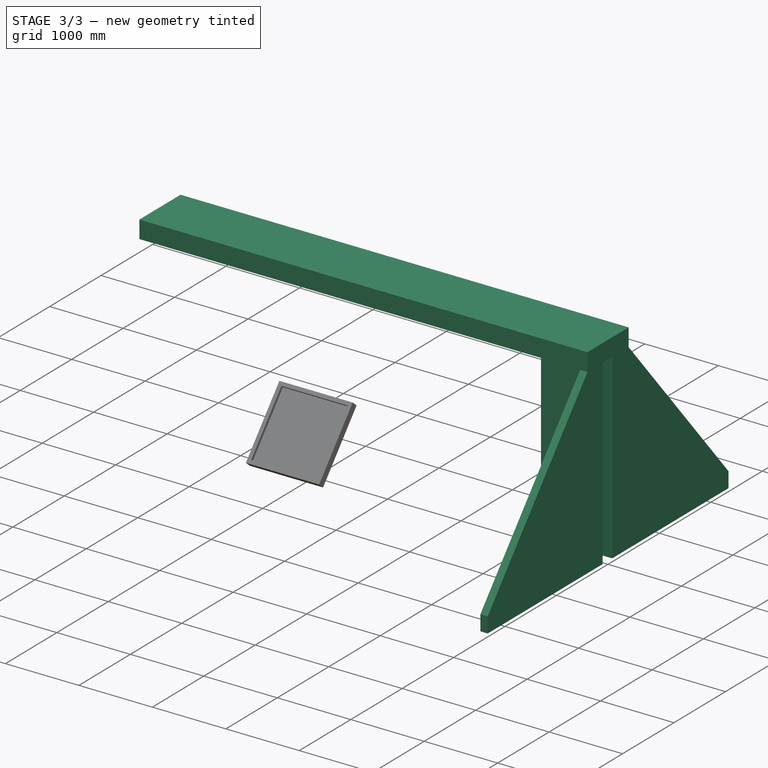
[diagram: stage 3 of 3 — iso view after this stage's code; geometry added in this stage tinted green]
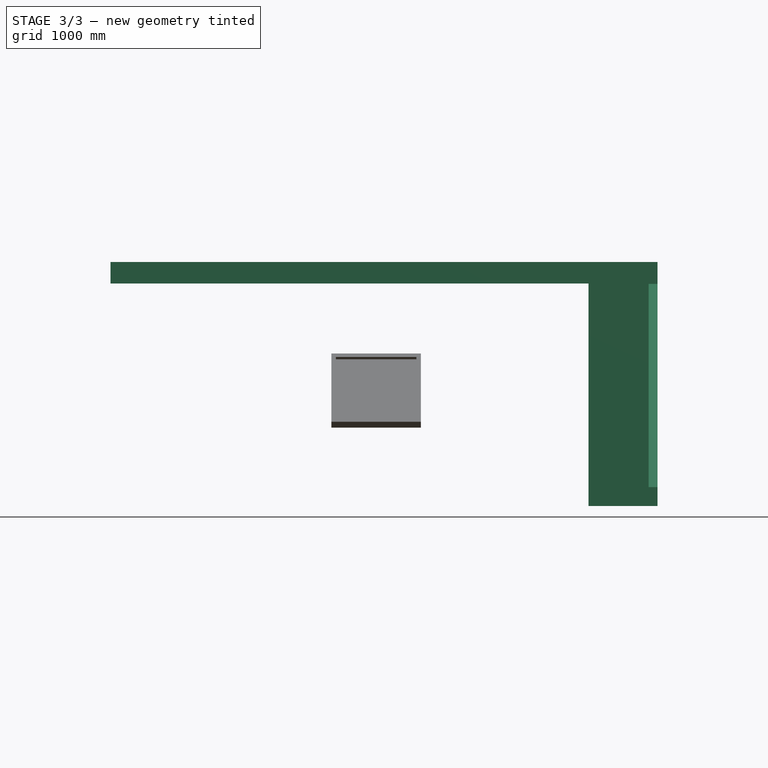
[diagram: stage 3 of 3 — front view after this stage's code; geometry added in this stage tinted green]
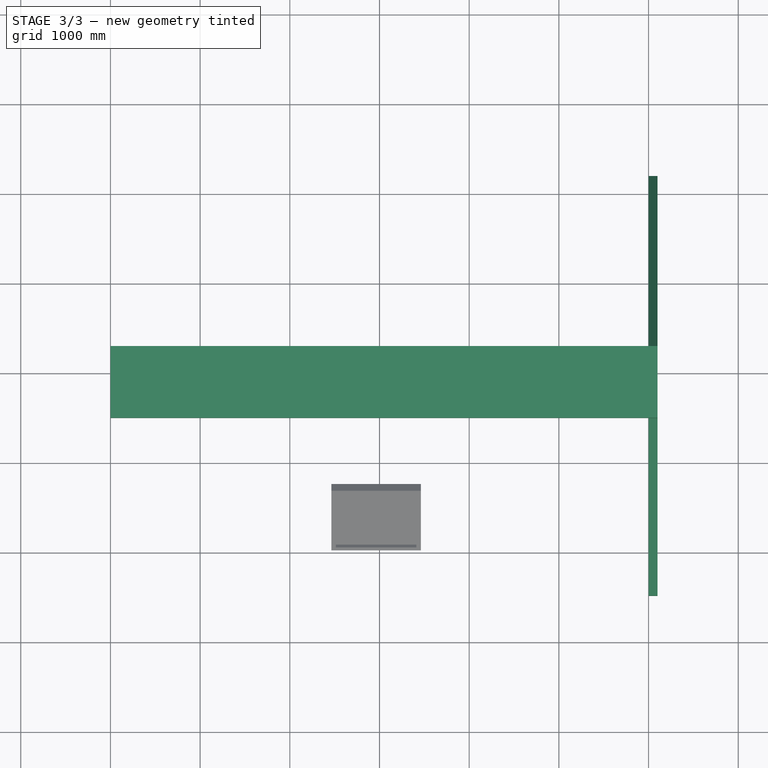
[diagram: stage 3 of 3 — top view after this stage's code; geometry added in this stage tinted green]
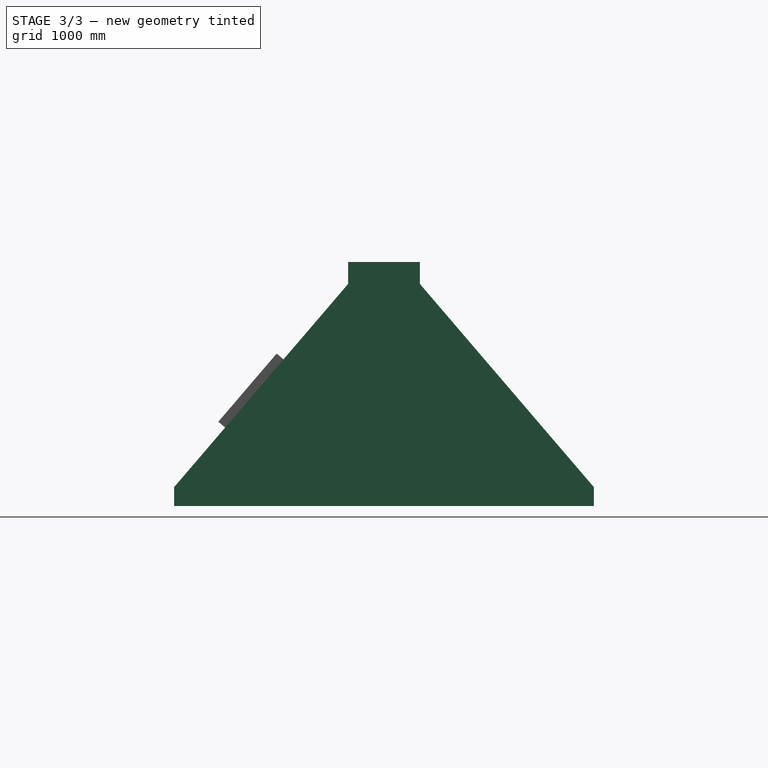
[diagram: stage 3 of 3 — right view after this stage's code; geometry added in this stage tinted green]
FEATURE [Part::FeaturePython] Wall001  label="Wand001"  # Arch/BIM 166 (typed FeaturePython)
  Align = 2
  ArchSketchData = true
  Area = 1.49296e+07
  Base = -> WallTrace002
  BlockHeight = 0
  BlockLength = 0
  CountBroken = 0
  CountEntire = 0
  Face = 0
  Height = 2480
  HorizontalArea = 602000
  IfcData = attributes={"GlobalId": {"name": "GlobalId", "type": "IfcGloballyUniqueId", "is_enum": false, "enum_values": []}, "Description": {"... (+533 chars omitted),+1 more (map truncated)
  IfcType = 166
  Joint = 0
  Length = 6020
  MakeBlocks = false
  MoveBase = false
  MoveWithHost = false
  Normal = (0,0,1)
  OffsetFirst = 0
  OffsetSecond = 0
  PerimeterLength = 12240
  PredefinedType = 0
  Subtractions = -> [Roof]
  VerticalArea = 2.10783e+07
  Width = 100
FEATURE [Sketcher::SketchObject] Sketch002
  ArcFitTolerance = 1e-06
  ExternalGeometry = -> [Roof]
  FullyConstrained = true
  MakeInternals = false
  Placement = pos=(0,0,2480) rot=(0,0,1;0rad)
  sketch-geometry (4):
    g0: LineSegment StartX=0 StartY=-740 StartZ=0 EndX=0 EndY=-1540 EndZ=0
    g1: LineSegment StartX=0 StartY=-1540 StartZ=0 EndX=6100 EndY=-1540 EndZ=0
    g2: LineSegment StartX=6100 StartY=-1540 StartZ=0 EndX=6100 EndY=-740 EndZ=0
    g3: LineSegment StartX=6100 StartY=-740 StartZ=0 EndX=0 EndY=-740 EndZ=0
  constraints (10):
    c: Coincident(g0,g1)
    c: Coincident(g1,g2)
    c: Coincident(g2,g3)
    c: Coincident(g3,g0)
    c: Vertical(g0)
    c: Vertical(g2)
    c: Horizontal(g1)
    c: Horizontal(g3)
    c: Coincident(g0,g-3)
    c: Coincident(g1,g-4)
FEATURE [Part::FeaturePython] Structure001  label="Platte001"  # Arch/BIM 118 (typed FeaturePython)
  Base = -> Sketch002
  BaseMirror = false
  BaseOffsetX = 0
  BaseOffsetY = 0
  BasePerpendicularToTool = true
  BaseRotation = 0
  ComputedLength = 240
  FaceMaker = 0
  Height = 240
  HorizontalArea = 4.88e+06
  IfcData = attributes={"GlobalId": {"name": "GlobalId", "type": "IfcGloballyUniqueId", "is_enum": false, "enum_values": []}, "Description": {"... (+453 chars omitted),+1 more (map truncated)
  IfcType = 118
  Length = 0
  MoveBase = false
  MoveWithHost = false
  Nodes = (4) [(0,-740,2480),(0,-1540,2480),(6100,-1540,2480),(6100,-740,2480)]
  NodesOffset = 0
  Normal = (0,0,1)
  PerimeterLength = 13800
  PredefinedType = 0
  ToolOffsetFirst = 0
  ToolOffsetLast = 0
  VerticalArea = 3.312e+06
  Width = 100
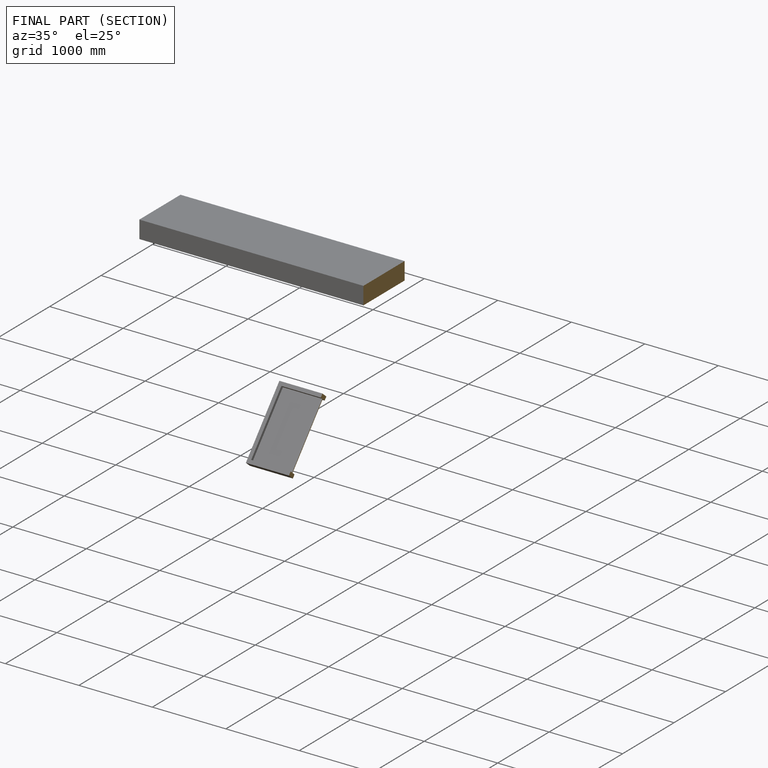
[diagram: finished part — half-section view (interior)]
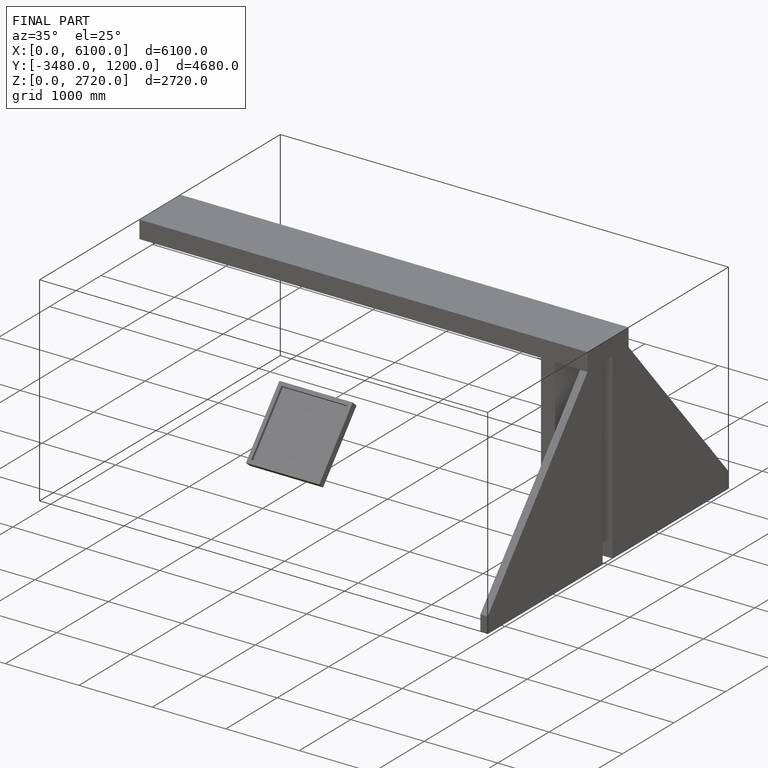
[diagram: finished part — iso view with bounding-box wireframe]
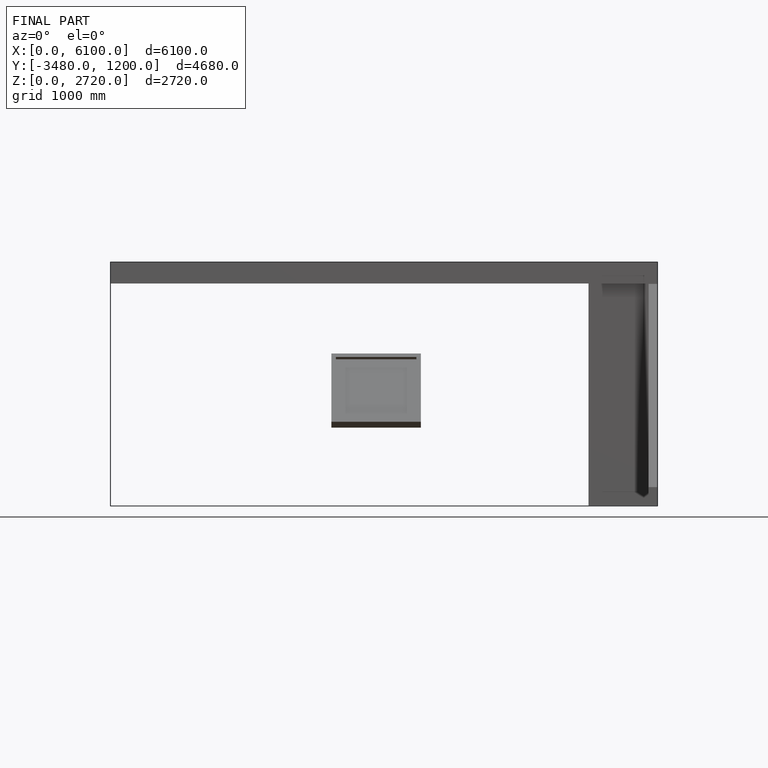
[diagram: finished part — front view with bounding-box wireframe]
